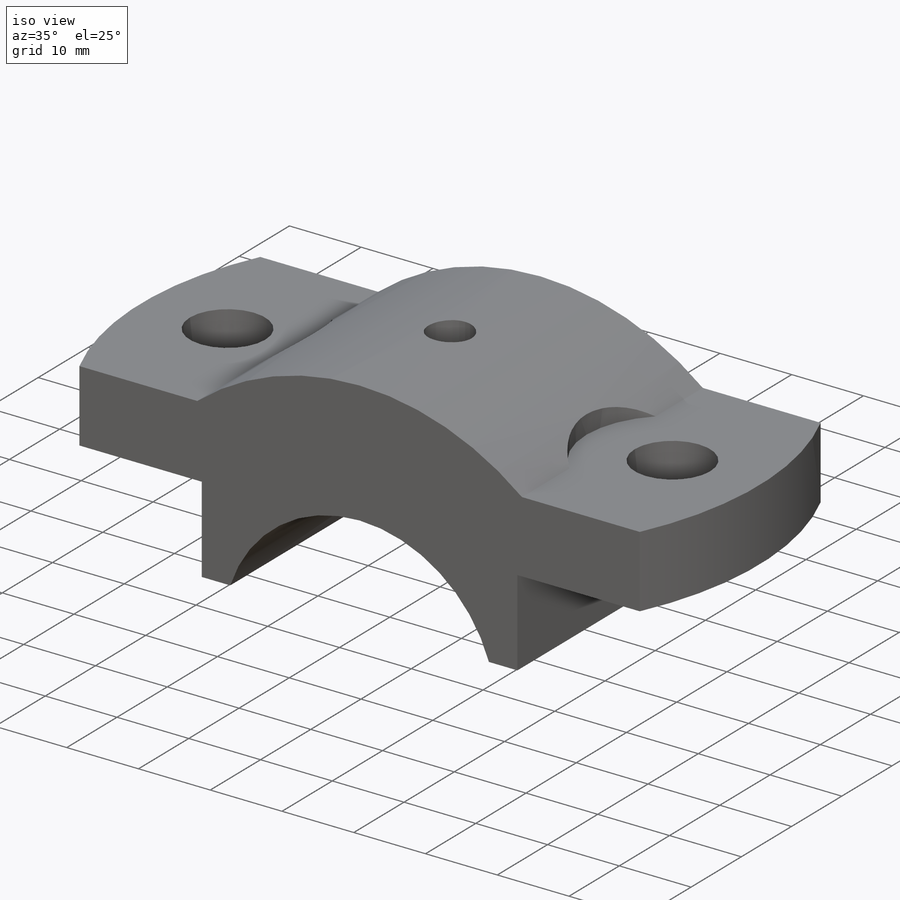
[diagram: iso view]
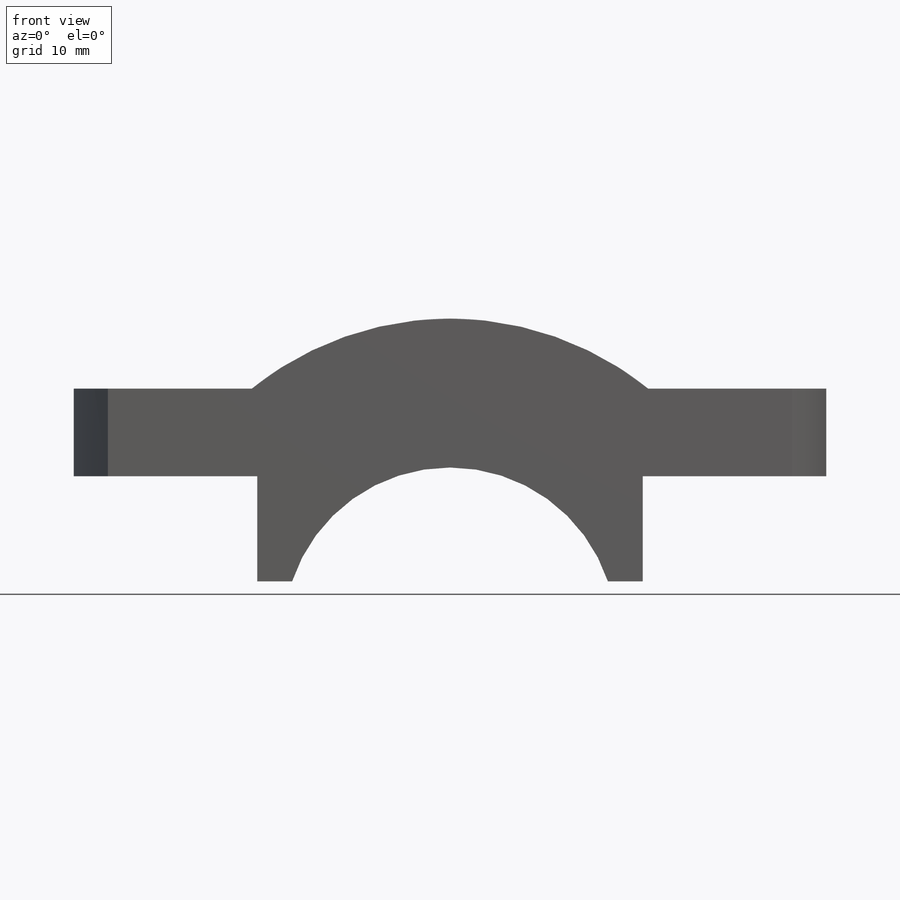
[diagram: front view]
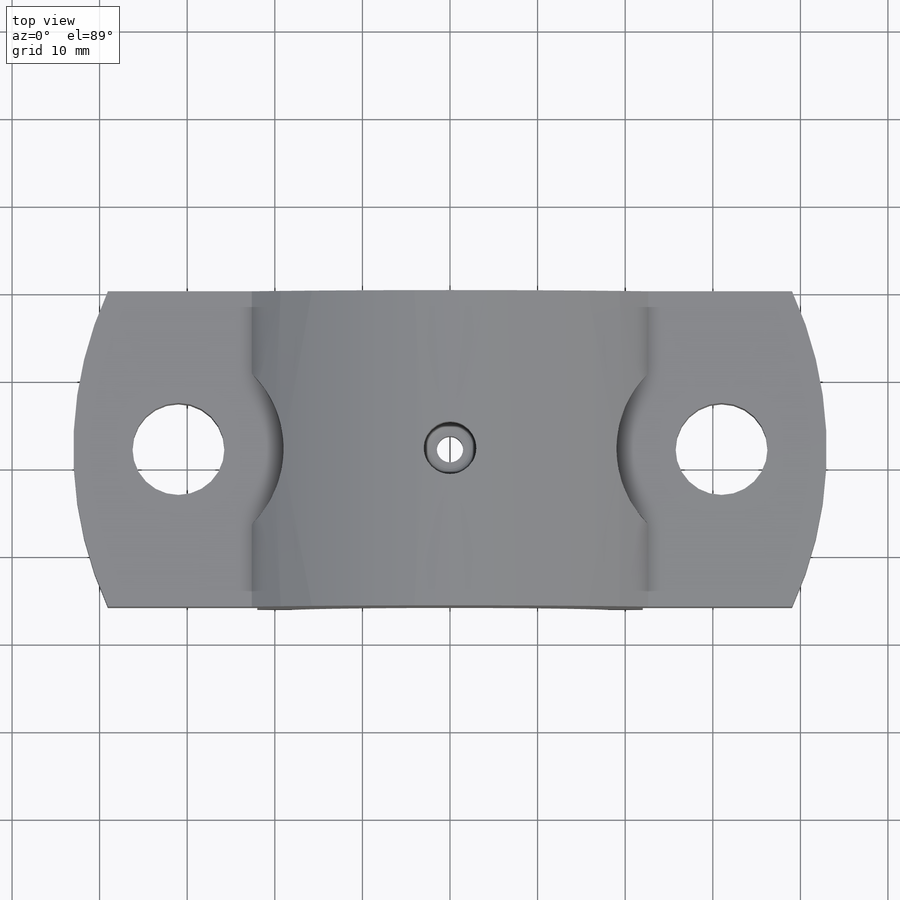
[diagram: top view]
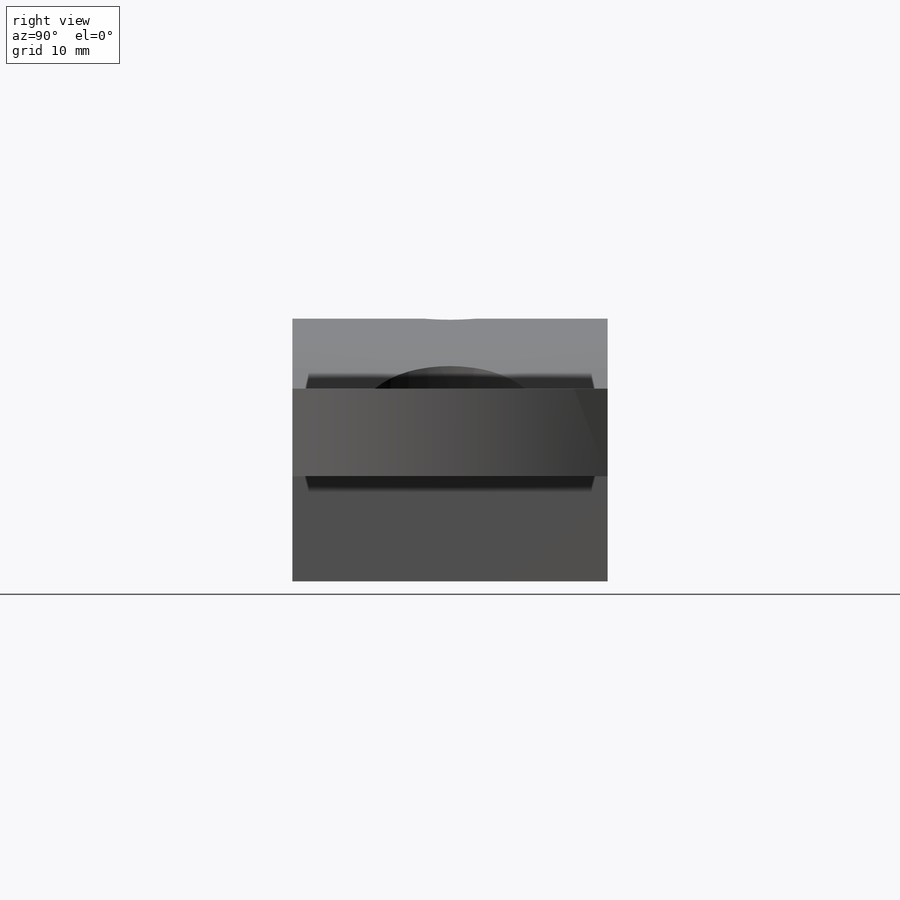
[diagram: right view]
SOLIDWORKS PART (.sldprt)
format: sldprt  version: not decoded by parser v0  size: 303,616 bytes
history: native  units: mm
features: sketch x8, cut_extrude x7, material x1, extrude x1, plane x1, fillet x1 (+13 scaffold rows collapsed)
feature tree (32):
  scaffold x13  (default folders/planes/origin — collapsed)
  material  "Material <not specified>"
  sketch  "Sketch1"  dims[c1.D3=19.0mm c1.D4=36.0mm c1.D1=10.0mm c1.D2=22.0mm c1.D5=43.0mm c1.D6=43.0mm c1.D7=44.0mm c1.D8=6.0mm c2.D7=12.0mm c2.D9=8.0mm]
  extrude  "Boss-Extrude1"  Depth=36mm
  sketch  "Sketch3"
  cut_extrude  "Cut-Extrude1"  Depth=10mm
  sketch  "Sketch4"
  cut_extrude  "Cut-Extrude2"  Depth=10mm
  sketch  "Sketch5"  dims[D1=~43.157258mm]
  cut_extrude  "Cut-Extrude8"  Depth=10mm
  sketch  "Sketch9"  dims[D2=10.5mm D3=~10.641249mm D1=31.0mm]
  cut_extrude  "Cut-Extrude9"  Depth=10mm
  sketch  "Sketch10"  dims[D1=12.0mm]
  cut_extrude  "Cut-Extrude10"  Depth=10mm
  plane  "Plane1"  Offset=8mm
  sketch  "Sketch11"  dims[D1=6.0mm]
  cut_extrude  "Cut-Extrude11"  Depth=10mm
  sketch  "Sketch13"  dims[D1=3.0mm]
  cut_extrude  "Cut-Extrude12"  Depth=10mm
  fillet  "Fillet2"  Radius=1mm
decode coverage: 15 of 17 modeling features carry decoded parameters
note: ~ marks probable driven/reference dimensions
note: suppression state not decoded; provenance and decode notes live in map.json
